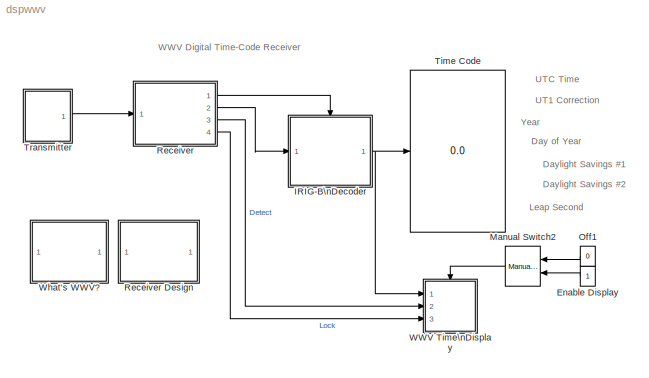
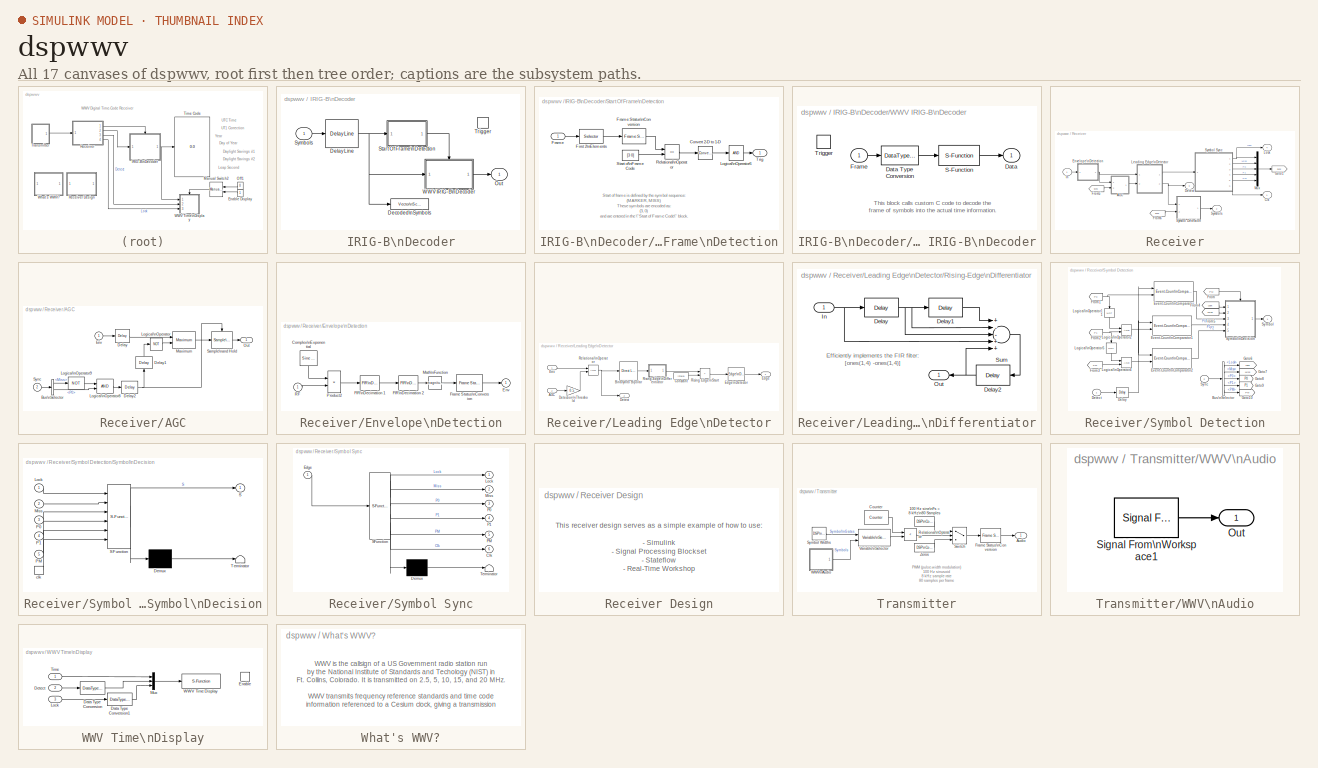
[diagram: thumbnail index - all 17 canvases of the model, root first then tree order]
MODEL dspwwv
KIND model
BLOCK [Constant] Enable Display
  OutDataTypeMode = boolean
BLOCK [SubSystem] IRIG-B\nDecoder
  MinAlgLoopOccurrences = off
  Ports = [1, 1, 0, 1]
  PropExecContextAcrossSSBoundary = on
  RTWSystemCode = Auto
  TreatAsAtomicUnit = on
BLOCK [Reference] IRIG-B\nDecoder/Decoded\nSymbols  REF=dspsnks4/Vector\nScope
  AxisGrid = on
  AxisLegend = off
  AxisProperties = off
  AxisZoom = off
  DisplayProperties = off
  Domain = User-defined
  FigPos = [288 87 633 176]
  FrameNumber = on
  HorizSpan = 1
  InheritXIncr = off
  LineColors = [0 0 1]|[0 0 1]
  LineMarkers = stem|stem
  LineProperties = off
  LineStyles = None|:
  Memory = off
  OpenScopeAtSimStart = on
  OpenScopeImmediately = off
  Ports = [1]
  ScopeProperties = on
  ShowPortLabels = off
  SourceBlock = dspsnks4/Vector\nScope
  SourceType = Vector Scope
  XIncr = 1
  XLabel = Samples
  XRange = [0...Fs/2]
  XUnits = Hertz
  YLabel = Symbols
  YMax = 3
  YMin = 0
  YUnits = dB
BLOCK [Reference] IRIG-B\nDecoder/Delay Line  REF=dspbuff3/Delay Line
  Ports = [1, 1]
  SourceBlock = dspbuff3/Delay Line
  SourceType = Delay Line
  directfeed = off
  ic = 0
  siz = 60
BLOCK [Outport] IRIG-B\nDecoder/Out
  IconDisplay = Port number
BLOCK [SubSystem] IRIG-B\nDecoder/Start Of Frame\nDetection
  MinAlgLoopOccurrences = off
  Ports = [1, 1]
  PropExecContextAcrossSSBoundary = on
  RTWSystemCode = Auto
  TreatAsAtomicUnit = off
BLOCK [Reference] IRIG-B\nDecoder/Start Of Frame\nDetection/Convert 2-D to 1-D  REF=dspsigattribs/Convert 2-D to 1-D
  Ports = [1, 1]
  ShowPortLabels = off
  SourceBlock = dspsigattribs/Convert 2-D to 1-D
  SourceType = Convert 2-D to 1-D
BLOCK [Selector] IRIG-B\nDecoder/Start Of Frame\nDetection/First 2\nElements
  Elements = [1 2]
  InputPortWidth = 60
  Ports = [1, 1]
BLOCK [Inport] IRIG-B\nDecoder/Start Of Frame\nDetection/Frame
  IconDisplay = Port number
  LatchInput = off
BLOCK [Reference] IRIG-B\nDecoder/Start Of Frame\nDetection/Frame Status\nConversion  REF=dspsigattribs/Frame Status\nConversion
  Ports = [1, 1]
  ShowPortLabels = off
  SourceBlock = dspsigattribs/Frame Status\nConversion
  SourceType = Frame Status Conversion
  growRefPort = off
  outframe = Sample-based
BLOCK [Logic] IRIG-B\nDecoder/Start Of Frame\nDetection/Logical\nOperator6
  Inputs = 1
  Ports = [1, 1]
BLOCK [RelationalOperator] IRIG-B\nDecoder/Start Of Frame\nDetection/Relational\nOperator
  Operator = ==
BLOCK [Constant] IRIG-B\nDecoder/Start Of Frame\nDetection/Start of\nFrame Code
  OutDataTypeMode = int8
  Value = [3 0]
BLOCK [Outport] IRIG-B\nDecoder/Start Of Frame\nDetection/Trig
  IconDisplay = Port number
  InitialOutput = 0
BLOCK [Inport] IRIG-B\nDecoder/Symbols
  IconDisplay = Port number
  LatchInput = off
BLOCK [TriggerPort] IRIG-B\nDecoder/Trigger
  Ports = []
  StatesWhenEnabling = reset
BLOCK [SubSystem] IRIG-B\nDecoder/WWV IRIG-B\nDecoder
  MinAlgLoopOccurrences = off
  Ports = [1, 1, 0, 1]
  PropExecContextAcrossSSBoundary = on
  RTWSystemCode = Auto
  TreatAsAtomicUnit = on
BLOCK [Outport] IRIG-B\nDecoder/WWV IRIG-B\nDecoder/Data
  IconDisplay = Port number
  InitialOutput = 0
BLOCK [DataTypeConversion] IRIG-B\nDecoder/WWV IRIG-B\nDecoder/Data Type Conversion
BLOCK [Inport] IRIG-B\nDecoder/WWV IRIG-B\nDecoder/Frame
  IconDisplay = Port number
  LatchInput = off
BLOCK [S-Function] IRIG-B\nDecoder/WWV IRIG-B\nDecoder/S-Function
  FunctionName = sdspwwv2
  Parameters = 2000
  Ports = [1, 1]
BLOCK [TriggerPort] IRIG-B\nDecoder/WWV IRIG-B\nDecoder/Trigger
  Ports = []
  StatesWhenEnabling = reset
BLOCK [Reference] Manual Switch2  REF=simulink/Signal\nRouting/Manual Switch
  Ports = [2, 1]
  ShowPortLabels = on
  SourceBlock = simulink/Signal\nRouting/Manual Switch
  SourceType = Manual Switch
  action = 0
  sw = 1
BLOCK [Constant] Off1
  OutDataTypeMode = boolean
  Value = 0
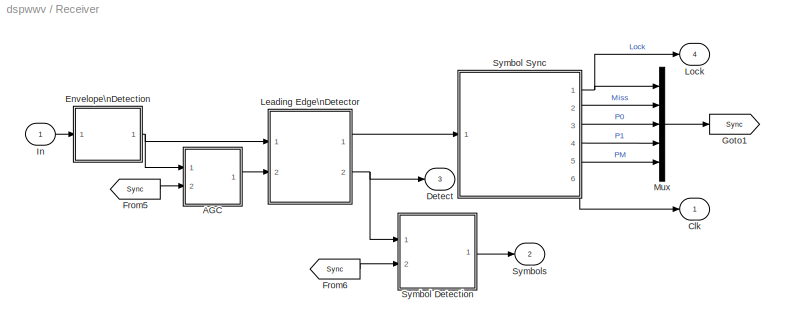
BLOCK [SubSystem] Receiver
  MinAlgLoopOccurrences = off
  Ports = [1, 4]
  PropExecContextAcrossSSBoundary = on
  RTWSystemCode = Auto
  TreatAsAtomicUnit = off
BLOCK [SubSystem] Receiver Design
  MaskDisplay = disp('Receiver\\nDesign')
  MaskIconFrame = on
  MaskIconOpaque = on
  MaskIconRotate = none
  MaskIconUnits = autoscale
  MaskType = WWV Info
  MinAlgLoopOccurrences = off
  Ports = []
  PropExecContextAcrossSSBoundary = on
  RTWSystemCode = Auto
  TreatAsAtomicUnit = off
BLOCK [SubSystem] Receiver/AGC
  MinAlgLoopOccurrences = off
  Ports = [2, 1]
  PropExecContextAcrossSSBoundary = on
  RTWSystemCode = Auto
  TreatAsAtomicUnit = off
BLOCK [BusSelector] Receiver/AGC/Bus\nSelector
  DialogController = Simulink.DDGSource_Bus
  OutputSignals = Miss,P0
  Ports = [1, 2]
BLOCK [Reference] Receiver/AGC/Delay  REF=dspsigops/Delay
  Ports = [1, 1]
  SourceBlock = dspsigops/Delay
  SourceType = Delay
  delay = 3
  dif_ic_for_ch = off
  dif_ic_for_dly = off
  dly_unit = Samples
  ic = 0
  ic_detail = off
  reset_popup = None
BLOCK [Reference] Receiver/AGC/Delay1  REF=dspsigops/Delay
  Ports = [1, 1]
  SourceBlock = dspsigops/Delay
  SourceType = Delay
  delay = 1
  dif_ic_for_ch = off
  dif_ic_for_dly = off
  dly_unit = Samples
  ic = 0
  ic_detail = off
  reset_popup = None
BLOCK [Reference] Receiver/AGC/Delay2  REF=dspsigops/Delay
  Ports = [1, 1]
  SourceBlock = dspsigops/Delay
  SourceType = Delay
  delay = 1
  dif_ic_for_ch = off
  dif_ic_for_dly = off
  dly_unit = Samples
  ic = 0
  ic_detail = off
  reset_popup = None
BLOCK [Inport] Receiver/AGC/Env
  IconDisplay = Port number
  LatchInput = off
BLOCK [Logic] Receiver/AGC/Logical\nOperator
  Inputs = 1
  Operator = NOT
  Ports = [1, 1]
BLOCK [Logic] Receiver/AGC/Logical\nOperator8
  Ports = [2, 1]
BLOCK [Logic] Receiver/AGC/Logical\nOperator9
  Inputs = 1
  Operator = NOT
  Ports = [1, 1]
BLOCK [Reference] Receiver/AGC/Maximum  REF=dspstat3/Maximum
  DialogController = dspDDGCreate
  DialogControllerArgs = DataTag0
  Ports = [2, 1]
  SourceBlock = dspstat3/Maximum
  SourceType = Maximum
  accumFracLength = 30
  accumMode = Same as product output
  accumWordLength = 32
  additionalParams = off
  allowOverrides = on
  fcn = Running
  overflowMode = off
  prodOutputFracLength = 30
  prodOutputMode = Same as input
  prodOutputWordLength = 32
  reset = Non-zero sample
  roundingMode = Floor
BLOCK [Outport] Receiver/AGC/Out
  IconDisplay = Port number
BLOCK [Reference] Receiver/AGC/Sample\nand Hold  REF=dspsigops/Sample\nand Hold
  Ports = [1, 1, 0, 1]
  ShowPortLabels = on
  SourceBlock = dspsigops/Sample\nand Hold
  SourceType = Sample and Hold
  initCond = single(0.075)
  trig = Falling edge
BLOCK [Inport] Receiver/AGC/Sync
  IconDisplay = Port number
  LatchInput = off
  Port = 2
BLOCK [Outport] Receiver/Clk
  IconDisplay = Port number
  InitialOutput = 0
BLOCK [Outport] Receiver/Detect
  IconDisplay = Port number
  InitialOutput = 0
  Port = 3
BLOCK [SubSystem] Receiver/Envelope\nDetection
  MinAlgLoopOccurrences = off
  Ports = [1, 1]
  PropExecContextAcrossSSBoundary = on
  RTWSystemCode = Auto
  TreatAsAtomicUnit = off
BLOCK [Reference] Receiver/Envelope\nDetection/Complex\nExponential  REF=dspsrcs4/Sine Wave
  Amplitude = 1
  CompMethod = Table lookup
  Frequency = 100
  OutComplex = Complex
  Phase = 0
  Ports = [0, 1]
  ResetState = Restart at time zero
  SampleMode = Discrete
  SampleTime = 1/8000
  SamplesPerFrame = 80
  SourceBlock = dspsrcs4/Sine Wave
  SourceType = Sine Wave
  TableSize = Memory
  additionalParams = on
  allowOverrides = on
  dataType = single
  fracBitsMode = Best precision
  numFracBits = 14
  udDataType = sfix(16)
  wordLen = 16
BLOCK [Outport] Receiver/Envelope\nDetection/Env
  IconDisplay = Port number
  InitialOutput = 0
BLOCK [Reference] Receiver/Envelope\nDetection/FIR\nDecimation 1  REF=dspmlti3/FIR\nDecimation
  D = 20
  DialogController = dspDDGCreate
  DialogControllerArgs = DataTag1
  Ports = [1, 1]
  SourceBlock = dspmlti3/FIR\nDecimation
  SourceType = FIR Decimation
  accumFracLength = 30
  accumMode = Inherit via internal rule
  accumWordLength = 32
  additionalParams = off
  allowOverrides = on
  firstCoeffFracLength = 15
  firstCoeffMode = Same word length as input
  firstCoeffWordLength = 16
  framing = Maintain input frame rate
  h = fir1(31, 1/40)
  outputBufInitCond = 0
  outputFracLength = 15
  outputMode = Same as accumulator
  outputWordLength = 16
  overflowMode = off
  prodOutputFracLength = 30
  prodOutputMode = Inherit via internal rule
  prodOutputWordLength = 32
  roundingMode = Floor
BLOCK [Reference] Receiver/Envelope\nDetection/FIR\nDecimation 2  REF=dspmlti3/FIR\nDecimation
  D = 4
  DialogController = dspDDGCreate
  DialogControllerArgs = DataTag2
  Ports = [1, 1]
  SourceBlock = dspmlti3/FIR\nDecimation
  SourceType = FIR Decimation
  accumFracLength = 30
  accumMode = Inherit via internal rule
  accumWordLength = 32
  additionalParams = off
  allowOverrides = on
  firstCoeffFracLength = 15
  firstCoeffMode = Same word length as input
  firstCoeffWordLength = 16
  framing = Maintain input frame rate
  h = fir1(15, 1/8)
  outputBufInitCond = 0
  outputFracLength = 15
  outputMode = Same as accumulator
  outputWordLength = 16
  overflowMode = off
  prodOutputFracLength = 30
  prodOutputMode = Inherit via internal rule
  prodOutputWordLength = 32
  roundingMode = Floor
BLOCK [Reference] Receiver/Envelope\nDetection/Frame Status\nConversion  REF=dspsigattribs/Frame Status\nConversion
  Ports = [1, 1]
  ShowPortLabels = off
  SourceBlock = dspsigattribs/Frame Status\nConversion
  SourceType = Frame Status Conversion
  growRefPort = off
  outframe = Sample-based
BLOCK [Math] Receiver/Envelope\nDetection/Math\nFunction
  Operator = magnitude^2
  Ports = [1, 1]
BLOCK [Product] Receiver/Envelope\nDetection/Product2
  Ports = [2, 1]
  RndMeth = Floor
BLOCK [Inport] Receiver/Envelope\nDetection/RF
  IconDisplay = Port number
  LatchInput = off
BLOCK [From] Receiver/From5
  DialogController = Simulink.DDGSource
  GotoTag = Sync
BLOCK [From] Receiver/From6
  DialogController = Simulink.DDGSource
  GotoTag = Sync
BLOCK [Goto] Receiver/Goto1
  DialogController = Simulink.DDGSource
  GotoTag = Sync
  TagVisibility = local
BLOCK [Inport] Receiver/In
  IconDisplay = Port number
  LatchInput = off
BLOCK [SubSystem] Receiver/Leading Edge\nDetector
  MinAlgLoopOccurrences = off
  Ports = [2, 2]
  PropExecContextAcrossSSBoundary = on
  RTWSystemCode = Auto
  TreatAsAtomicUnit = off
BLOCK [Inport] Receiver/Leading Edge\nDetector/AGC
  IconDisplay = Port number
  LatchInput = off
  Port = 2
BLOCK [Reference] Receiver/Leading Edge\nDetector/Binary\nto Bipolar  REF=simulink/Lookup\nTables/Direct Lookup\nTable (n-D)
  Ports = [1, 1]
  SourceBlock = simulink/Lookup\nTables/Direct Lookup\nTable (n-D)
  SourceType = LookupNDDirect
  clipFlag = None
  explicitNumDims = 1
  maskTabDims = 1
  mxTable = int8([-1, 1])
  outDims = Element
  tabIsInput = off
BLOCK [Constant] Receiver/Leading Edge\nDetector/Constant
  Value = int8(5)
BLOCK [Outport] Receiver/Leading Edge\nDetector/Detect
  IconDisplay = Port number
  InitialOutput = 0
  Port = 2
BLOCK [Gain] Receiver/Leading Edge\nDetector/Detection\nThreshold
  Gain = 0.5
BLOCK [Outport] Receiver/Leading Edge\nDetector/Edge
  IconDisplay = Port number
  InitialOutput = 0
BLOCK [Reference] Receiver/Leading Edge\nDetector/Edge\nDetector  REF=dspswit3/Edge\nDetector
  Ports = [1, 1]
  ShowPortLabels = on
  SourceBlock = dspswit3/Edge\nDetector
  SourceType = Edge Detector
BLOCK [Inport] Receiver/Leading Edge\nDetector/Env
  IconDisplay = Port number
  LatchInput = off
BLOCK [RelationalOperator] Receiver/Leading Edge\nDetector/Relational\nOperator
BLOCK [RelationalOperator] Receiver/Leading Edge\nDetector/Rising Edge\nStart
  InputSameDT = off
  LogicOutDataTypeMode = Boolean
  Operator = >
  ZeroCross = off
BLOCK [SubSystem] Receiver/Leading Edge\nDetector/Rising-Edge\nDifferentiator
  MinAlgLoopOccurrences = off
  Ports = [1, 1]
  PropExecContextAcrossSSBoundary = on
  RTWSystemCode = Auto
  TreatAsAtomicUnit = off
BLOCK [Reference] Receiver/Leading Edge\nDetector/Rising-Edge\nDifferentiator/Delay  REF=dspsigops/Delay
  Ports = [1, 1]
  SourceBlock = dspsigops/Delay
  SourceType = Delay
  delay = 4
  dif_ic_for_ch = off
  dif_ic_for_dly = off
  dly_unit = Samples
  ic = 0
  ic_detail = off
  reset_popup = None
BLOCK [Reference] Receiver/Leading Edge\nDetector/Rising-Edge\nDifferentiator/Delay1  REF=dspsigops/Delay
  Ports = [1, 1]
  SourceBlock = dspsigops/Delay
  SourceType = Delay
  delay = 4
  dif_ic_for_ch = off
  dif_ic_for_dly = off
  dly_unit = Samples
  ic = 0
  ic_detail = off
  reset_popup = None
BLOCK [Reference] Receiver/Leading Edge\nDetector/Rising-Edge\nDifferentiator/Delay2  REF=dspsigops/Delay
  Ports = [1, 1]
  SourceBlock = dspsigops/Delay
  SourceType = Delay
  delay = 1
  dif_ic_for_ch = off
  dif_ic_for_dly = off
  dly_unit = Samples
  ic = 0
  ic_detail = off
  reset_popup = None
BLOCK [Inport] Receiver/Leading Edge\nDetector/Rising-Edge\nDifferentiator/In
  IconDisplay = Port number
  LatchInput = off
BLOCK [Outport] Receiver/Leading Edge\nDetector/Rising-Edge\nDifferentiator/Out
  IconDisplay = Port number
BLOCK [Sum] Receiver/Leading Edge\nDetector/Rising-Edge\nDifferentiator/Sum
  InputSameDT = off
  Inputs = +--++
  OutDataTypeMode = Inherit via internal rule
  Ports = [5, 1]
BLOCK [Outport] Receiver/Lock
  IconDisplay = Port number
  InitialOutput = 0
  Port = 4
BLOCK [Mux] Receiver/Mux
  DisplayOption = bar
  Inputs = 5
  Ports = [5, 1]
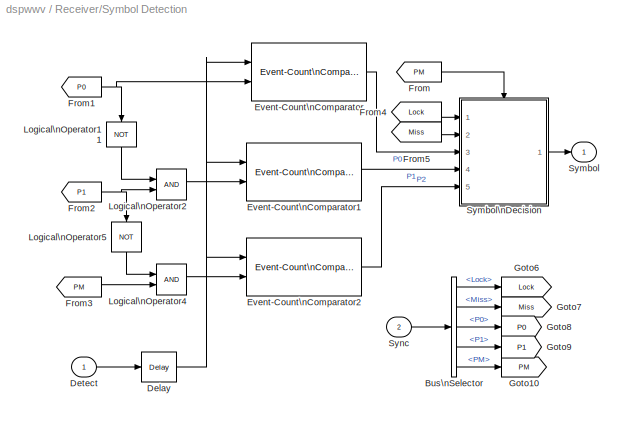
BLOCK [SubSystem] Receiver/Symbol Detection
  MinAlgLoopOccurrences = off
  Ports = [2, 1]
  PropExecContextAcrossSSBoundary = on
  RTWSystemCode = Auto
  TreatAsAtomicUnit = off
BLOCK [BusSelector] Receiver/Symbol Detection/Bus\nSelector
  DialogController = Simulink.DDGSource_Bus
  OutputSignals = Lock,Miss,P0,P1,PM
  Ports = [1, 5]
BLOCK [Reference] Receiver/Symbol Detection/Delay  REF=dspsigops/Delay
  Ports = [1, 1]
  SourceBlock = dspsigops/Delay
  SourceType = Delay
  delay = 2
  dif_ic_for_ch = off
  dif_ic_for_dly = off
  dly_unit = Samples
  ic = 0
  ic_detail = off
  reset_popup = None
BLOCK [Inport] Receiver/Symbol Detection/Detect
  IconDisplay = Port number
  LatchInput = off
BLOCK [Reference] Receiver/Symbol Detection/Event-Count\nComparator  REF=dspswit3/Event-Count\nComparator
  Ports = [2, 1]
  ShowPortLabels = on
  SourceBlock = dspswit3/Event-Count\nComparator
  SourceType = Event-Count Comparator
  Threshold = floor(0.17*50/2)
BLOCK [Reference] Receiver/Symbol Detection/Event-Count\nComparator1  REF=dspswit3/Event-Count\nComparator
  Ports = [2, 1]
  ShowPortLabels = on
  SourceBlock = dspswit3/Event-Count\nComparator
  SourceType = Event-Count Comparator
  Threshold = floor((0.47-0.17)*50/2)
BLOCK [Reference] Receiver/Symbol Detection/Event-Count\nComparator2  REF=dspswit3/Event-Count\nComparator
  Ports = [2, 1]
  ShowPortLabels = on
  SourceBlock = dspswit3/Event-Count\nComparator
  SourceType = Event-Count Comparator
  Threshold = floor((0.77-0.47)*50/2)
BLOCK [From] Receiver/Symbol Detection/From
  DialogController = Simulink.DDGSource
  GotoTag = PM
BLOCK [From] Receiver/Symbol Detection/From1
  DialogController = Simulink.DDGSource
  GotoTag = P0
BLOCK [From] Receiver/Symbol Detection/From2
  DialogController = Simulink.DDGSource
  GotoTag = P1
BLOCK [From] Receiver/Symbol Detection/From3
  DialogController = Simulink.DDGSource
  GotoTag = PM
BLOCK [From] Receiver/Symbol Detection/From4
  DialogController = Simulink.DDGSource
  GotoTag = Lock
BLOCK [From] Receiver/Symbol Detection/From5
  DialogController = Simulink.DDGSource
  GotoTag = Miss
BLOCK [Goto] Receiver/Symbol Detection/Goto10
  DialogController = Simulink.DDGSource
  GotoTag = PM
  TagVisibility = local
BLOCK [Goto] Receiver/Symbol Detection/Goto6
  DialogController = Simulink.DDGSource
  GotoTag = Lock
  TagVisibility = local
BLOCK [Goto] Receiver/Symbol Detection/Goto7
  DialogController = Simulink.DDGSource
  GotoTag = Miss
  TagVisibility = local
BLOCK [Goto] Receiver/Symbol Detection/Goto8
  DialogController = Simulink.DDGSource
  GotoTag = P0
  TagVisibility = local
BLOCK [Goto] Receiver/Symbol Detection/Goto9
  DialogController = Simulink.DDGSource
  GotoTag = P1
  TagVisibility = local
BLOCK [Logic] Receiver/Symbol Detection/Logical\nOperator11
  Inputs = 1
  Operator = NOT
  Ports = [1, 1]
BLOCK [Logic] Receiver/Symbol Detection/Logical\nOperator2
  Ports = [2, 1]
BLOCK [Logic] Receiver/Symbol Detection/Logical\nOperator4
  Ports = [2, 1]
BLOCK [Logic] Receiver/Symbol Detection/Logical\nOperator5
  Inputs = 1
  Operator = NOT
  Ports = [1, 1]
BLOCK [Outport] Receiver/Symbol Detection/Symbol
  IconDisplay = Port number
  InitialOutput = 0
BLOCK [SubSystem] Receiver/Symbol Detection/Symbol\nDecision
  MaskDescription = Stateflow diagram
  MaskDisplay = plot(sf('Private','sfblk','xIcon'),sf('Private','sfblk','yIcon'));text(0.5,0,sf('Private', 'sfblk', 'tIcon'),'HorizontalAl','Center','VerticalAl','Bottom');
  MaskIconFrame = off
  MaskIconOpaque = off
  MaskIconRotate = none
  MaskIconUnits = autoscale
  MaskSelfModifiable = on
  MaskType = Stateflow
  MinAlgLoopOccurrences = off
  Ports = [5, 1, 0, 1]
  PropExecContextAcrossSSBoundary = on
  RTWSystemCode = Auto
  TreatAsAtomicUnit = off
BLOCK [Demux] Receiver/Symbol Detection/Symbol\nDecision/ Demux 
  Outputs = 1
  Ports = [1, 1]
BLOCK [S-Function] Receiver/Symbol Detection/Symbol\nDecision/ SFunction 
  FunctionName = sf_sfun
  PortCounts = [6 2]
  Ports = [6, 2]
  Tag = Stateflow S-Function dspwwv 1
BLOCK [Terminator] Receiver/Symbol Detection/Symbol\nDecision/ Terminator 
BLOCK [Inport] Receiver/Symbol Detection/Symbol\nDecision/Lock
  IconDisplay = Port number
  LatchInput = off
BLOCK [Inport] Receiver/Symbol Detection/Symbol\nDecision/Miss
  IconDisplay = Port number
  LatchInput = off
  Port = 2
BLOCK [Inport] Receiver/Symbol Detection/Symbol\nDecision/P0
  IconDisplay = Port number
  LatchInput = off
  Port = 3
BLOCK [Inport] Receiver/Symbol Detection/Symbol\nDecision/P1
  IconDisplay = Port number
  LatchInput = off
  Port = 4
BLOCK [Inport] Receiver/Symbol Detection/Symbol\nDecision/PM
  IconDisplay = Port number
  LatchInput = off
  Port = 5
BLOCK [Outport] Receiver/Symbol Detection/Symbol\nDecision/S
  IconDisplay = Port number
BLOCK [TriggerPort] Receiver/Symbol Detection/Symbol\nDecision/clk
  Ports = [0, 1]
  ShowOutputPort = on
  StatesWhenEnabling = reset
  TriggerType = falling
BLOCK [Inport] Receiver/Symbol Detection/Sync
  IconDisplay = Port number
  LatchInput = off
  Port = 2
BLOCK [SubSystem] Receiver/Symbol Sync
  MaskDescription = Stateflow diagram
  MaskDisplay = plot(sf('Private','sfblk','xIcon'),sf('Private','sfblk','yIcon'));text(0.5,0,sf('Private', 'sfblk', 'tIcon'),'HorizontalAl','Center','VerticalAl','Bottom');
  MaskIconFrame = off
  MaskIconOpaque = off
  MaskIconRotate = none
  MaskIconUnits = autoscale
  MaskSelfModifiable = on
  MaskType = Stateflow
  MinAlgLoopOccurrences = off
  Ports = [1, 6]
  PropExecContextAcrossSSBoundary = on
  RTWSystemCode = Auto
  TreatAsAtomicUnit = off
BLOCK [Demux] Receiver/Symbol Sync/ Demux 
  Outputs = 1
  Ports = [1, 1]
BLOCK [S-Function] Receiver/Symbol Sync/ SFunction 
  FunctionName = sf_sfun
  PortCounts = [1 7]
  Ports = [1, 7]
  Tag = Stateflow S-Function dspwwv 3
BLOCK [Terminator] Receiver/Symbol Sync/ Terminator 
BLOCK [Outport] Receiver/Symbol Sync/Clk
  IconDisplay = Port number
  Port = 6
BLOCK [Inport] Receiver/Symbol Sync/Edge
  IconDisplay = Port number
  LatchInput = off
BLOCK [Outport] Receiver/Symbol Sync/Lock
  IconDisplay = Port number
BLOCK [Outport] Receiver/Symbol Sync/Miss
  IconDisplay = Port number
  Port = 2
BLOCK [Outport] Receiver/Symbol Sync/P0
  IconDisplay = Port number
  Port = 3
BLOCK [Outport] Receiver/Symbol Sync/P1
  IconDisplay = Port number
  Port = 4
BLOCK [Outport] Receiver/Symbol Sync/PM
  IconDisplay = Port number
  Port = 5
BLOCK [Outport] Receiver/Symbols
  IconDisplay = Port number
  InitialOutput = 0
  Port = 2
BLOCK [Display] Time Code
  Decimation = 1
  Ports = [1]
BLOCK [SubSystem] Transmitter
  MinAlgLoopOccurrences = off
  Ports = [0, 1]
  PropExecContextAcrossSSBoundary = on
  RTWSystemCode = Auto
  TreatAsAtomicUnit = off
BLOCK [Reference] Transmitter/100 Hz sine\nFs = 8 kHz\n80 Samples  REF=dspsrcs4/DSP\nConstant
  FramebasedOutput = off
  InterpretAs1D = on
  Ports = [0, 1]
  SampleMode = Continuous
  ShowPortLabels = on
  SourceBlock = dspsrcs4/DSP\nConstant
  SourceType = DSP Constant
  Ts = 1
  Value = single(sin(2*pi*100*(0:79)/8000))
  additionalParams = off
  allowOverrides = on
  continuousOutput = Sample-based (interpret vectors as 1-D)
  dataType = Inherit from 'Constant value'
  discreteOutput = Sample-based (interpret vectors as 1-D)
  fracBitsMode = Best precision
  framePeriod = 1
  isSigned = on
  numFracBits = 15
  sampTime = 1
  udDataType = sfix(16)
  wordLen = 16
BLOCK [Outport] Transmitter/Audio
  IconDisplay = Port number
BLOCK [Reference] Transmitter/Counter  REF=dspswit3/Counter
  CntDtype = single
  CountEvent = Free running
  CounterSize = User defined
  Direction = Up
  HitDtype = Logical
  HitValue = 32
  InitialCount = 0
  MaxCount = 99
  Output = Count
  Ports = [0, 1]
  ResetInput = off
  SamplesPerFrame = 1
  SourceBlock = dspswit3/Counter
  SourceType = Counter
  Ts = 1/100
BLOCK [Reference] Transmitter/Frame Status\nConversion  REF=dspsigattribs/Frame Status\nConversion
  Ports = [1, 1]
  ShowPortLabels = off
  SourceBlock = dspsigattribs/Frame Status\nConversion
  SourceType = Frame Status Conversion
  growRefPort = off
  outframe = Frame-based
BLOCK [RelationalOperator] Transmitter/Relational\nOperator
  Operator = <
BLOCK [Switch] Transmitter/Switch
  Threshold = 1
BLOCK [Reference] Transmitter/Symbol Widths  REF=dspsrcs4/DSP\nConstant
  FramebasedOutput = -inf
  InterpretAs1D = -inf
  Ports = [0, 1]
  SampleMode = Discrete
  ShowPortLabels = on
  SourceBlock = dspsrcs4/DSP\nConstant
  SourceType = DSP Constant
  Ts = -inf
  Value = single([0 17 47 77])
  additionalParams = off
  allowOverrides = on
  continuousOutput = Sample-based
  dataType = Inherit from 'Constant value'
  discreteOutput = Sample-based (interpret vectors as 1-D)
  fracBitsMode = Best precision
  framePeriod = 2
  isSigned = on
  numFracBits = 15
  sampTime = 1
  udDataType = sfix(16)
  wordLen = 16
BLOCK [Reference] Transmitter/Variable\nSelector  REF=dspindex/Variable\nSelector
  Elements = [1 3]
  IdxMode = Variable
  Ports = [2, 1]
  ShowPortLabels = on
  SourceBlock = dspindex/Variable\nSelector
  SourceType = Variable Selector
  ZerOneIdxMode = Zero-based
  errmode = Clip and Warn
  rowsOrCols = Rows
BLOCK [SubSystem] Transmitter/WWV\nAudio
  MaskCallbackString = ||||||||
  MaskDescription = Generate 8 kHz sampled test data in WWV IRIG format.
  MaskDisplay = plot(x,y)
  MaskEnableString = on,on,on,on,on,on,on,on,on
  MaskHelp = Generate 8 kHz sampled test data in WWV IRIG format.
  MaskIconFrame = on
  MaskIconOpaque = on
  MaskIconRotate = none
  MaskIconUnits = normalized
  MaskInitialization = s.utc=utc;s.ut1=ut1;s.day=day;s.yr=yr;\ns.dst=dst;s.dst2=dst2;s.leap=leap; s.mode=outp;\n[b,Ts]=dspwwvgen(s);\n\nif strcmp(outp,'Audio'),\n\nx = [.1 .2 .2 .1 .1 NaN .2 .35 .35 .2 .2 NaN .35 .4 .4 .35 .35];\ny = [.4 .4 .6 .6 .4 NaN .4 .1  .9  .6 .4 NaN .1  .1 .9 .9  .1 ];\na=.5;  s=5*pi/180;  t = -s:pi/180:s; x = [x NaN a*cos(t)]; y = [y NaN a*sin(t)+.5];\na=.65; s=10*pi/180; t = -s:pi/180:s; x = [...<+219ch>
  MaskPromptString = Output:|Time (hh.mm):|UT1 Correction ([-0.7, +0.7]):|Day of year:|Year:|Daylight Savings|Daylight Savings #2|Leap second|Samples per frame:
  MaskStyleString = popup(Symbols|Audio),edit,edit,edit,edit,checkbox,checkbox,checkbox,edit
  MaskTabNameString = ,,,,,,,,
  MaskToolTipString = on,on,on,on,on,on,on,on,on
  MaskTunableValueString = on,on,on,on,on,on,on,on,on
  MaskType = WWV Audio Synthesizer
  MaskValueString = Symbols|12.34|+0.2|336|2002|off|off|on|1
  MaskVarAliasString = ,,,,,,,,
  MaskVariables = outp=&1;utc=@2;ut1=@3;day=@4;yr=@5;dst=@6;dst2=@7;leap=@8;bufsize=@9;
  MaskVisibilityString = on,on,on,on,on,on,on,on,on
  MinAlgLoopOccurrences = off
  Ports = [0, 1]
  PropExecContextAcrossSSBoundary = on
  RTWSystemCode = Auto
  TreatAsAtomicUnit = off
BLOCK [Outport] Transmitter/WWV\nAudio/Out
  IconDisplay = Port number
  InitialOutput = 0
BLOCK [Reference] Transmitter/WWV\nAudio/Signal From\nWorkspace1  REF=dspsrcs4/Signal From\nWorkspace
  OutputAfterFinalValue = Setting to zero
  Ports = [0, 1]
  ShowPortLabels = on
  SourceBlock = dspsrcs4/Signal From\nWorkspace
  SourceType = Signal From Workspace
  Ts = Ts
  X = int8(b)
  nsamps = bufsize
BLOCK [Reference] Transmitter/Zeros  REF=dspsrcs4/DSP\nConstant
  FramebasedOutput = off
  InterpretAs1D = on
  Ports = [0, 1]
  SampleMode = Continuous
  ShowPortLabels = on
  SourceBlock = dspsrcs4/DSP\nConstant
  SourceType = DSP Constant
  Ts = 1
  Value = single(zeros(80,1))
  additionalParams = off
  allowOverrides = on
  continuousOutput = Sample-based (interpret vectors as 1-D)
  dataType = Inherit from 'Constant value'
  discreteOutput = Sample-based (interpret vectors as 1-D)
  fracBitsMode = Best precision
  framePeriod = 1
  isSigned = on
  numFracBits = 15
  sampTime = 1
  udDataType = sfix(16)
  wordLen = 16
BLOCK [SubSystem] WWV Time\nDisplay
  CopyFcn = sdspwwvdisp([],[],[],'BlockCopy');
  DeleteFcn = sdspwwvdisp([],[],[],'BlockDelete');
  MaskDescription = Display WWV time-code data in a Handle Graphics window.
  MaskDisplay = disp('WWV\\nDisplay')\n
  MaskEnableString = on
  MaskHelp = Display WWV time-code data in a Handle Graphics window.
  MaskIconFrame = on
  MaskIconOpaque = on
  MaskIconRotate = none
  MaskIconUnits = autoscale
  MaskInitialization = s.FigPos = FigPos;\n
  MaskPromptString = Figure position:
  MaskSelfModifiable = on
  MaskStyleString = edit
  MaskToolTipString = on
  MaskTunableValueString = on
  MaskType = WWV Time Display
  MaskValueString = [50 50 230 230]
  MaskVariables = FigPos=@1;
  MaskVisibilityString = on
  MinAlgLoopOccurrences = off
  NameChangeFcn = sdspwwvdisp([],[],[],'NameChange');
  Ports = [3, 0, 1]
  PropExecContextAcrossSSBoundary = on
  RTWSystemCode = Auto
  TreatAsAtomicUnit = on
BLOCK [DataTypeConversion] WWV Time\nDisplay/Data Type Conversion
BLOCK [DataTypeConversion] WWV Time\nDisplay/Data Type Conversion1
BLOCK [Inport] WWV Time\nDisplay/Detect
  IconDisplay = Port number
  LatchInput = off
  Port = 2
BLOCK [EnablePort] WWV Time\nDisplay/Enable
  Ports = []
BLOCK [Inport] WWV Time\nDisplay/Lock
  IconDisplay = Port number
  LatchInput = off
  Port = 3
BLOCK [Mux] WWV Time\nDisplay/Mux
  DisplayOption = bar
  Inputs = 3
  Ports = [3, 1]
BLOCK [Inport] WWV Time\nDisplay/Time
  IconDisplay = Port number
  LatchInput = off
BLOCK [S-Function] WWV Time\nDisplay/WWV Time Display
  FunctionName = sdspwwvdisp
  Parameters = s
  Ports = [1]
BLOCK [SubSystem] What's WWV?
  MaskDisplay = disp('What''s\\nWWV?')
  MaskIconFrame = on
  MaskIconOpaque = on
  MaskIconRotate = none
  MaskIconUnits = autoscale
  MaskType = WWV Info
  MinAlgLoopOccurrences = off
  Ports = []
  PropExecContextAcrossSSBoundary = on
  RTWSystemCode = Auto
  TreatAsAtomicUnit = off
ANNOTATION (root): UT1 Correction
ANNOTATION (root): UTC Time
ANNOTATION (root): Day of Year
ANNOTATION (root): Daylight Savings #1
ANNOTATION (root): Daylight Savings #2
ANNOTATION (root): Leap Second
ANNOTATION (root): Year
ANNOTATION (root): \nWWV Digital Time-Code Receiver\n
ANNOTATION IRIG-B\nDecoder/Start Of Frame\nDetection: Start of frame is defined by the symbol sequence: \n(MARKER, MISS)\nThese symbols are encoded as:\n(3, 0)\nand are entered in the \"Start of Frame Code\" block.
ANNOTATION IRIG-B\nDecoder/WWV IRIG-B\nDecoder: This block calls custom C code to decode the\nframe of symbols into the actual time information.
ANNOTATION Receiver Design: This receiver design serves as a simple example of how to use:\n\n- Simulink\n- Signal Processing Blockset\n- Stateflow\n- Real-Time Workshop\n\ntogether to achieve an incoherent digital receiver. The\nexample incorporates Stateflow for achieving symbol\nsynchronization. Therefore, you must have a compatible\nC compiler and be able to compile MEX from MATLAB.\n\nThe transmitted symbols, MARKER, ZE...<+170ch>
ANNOTATION Receiver/Leading Edge\nDetector/Rising-Edge\nDifferentiator: Efficiently implements the FIR filter:\n[ones(1,4) -ones(1,4)]
ANNOTATION Transmitter: PWM (pulse-width modulation)\n100 Hz sinusoid\n8 kHz sample rate\n80 samples per frame
ANNOTATION What's WWV?: WWV is the callsign of a US Government radio station run\nby the National Institute of Standards and Techology (NIST) in\nFt. Collins, Colorado. It is transmitted on 2.5, 5, 10, 15, and 20 MHz.\n\nWWV transmits frequency reference standards and time code\ninformation referenced to a Cesium clock, giving a transmission\naccuracy of 1 part in 100 billion for frequency or 10 uS for timing.\n\nThe tim...<+592ch>
LINE Enable Display:1 -> Manual Switch2:2
NET IRIG-B\nDecoder/Delay Line:1 -> IRIG-B\nDecoder/Decoded\nSymbols:1, IRIG-B\nDecoder/Start Of Frame\nDetection:1, IRIG-B\nDecoder/WWV IRIG-B\nDecoder:1
LINE IRIG-B\nDecoder/Start Of Frame\nDetection/Convert 2-D to 1-D:1 -> IRIG-B\nDecoder/Start Of Frame\nDetection/Logical\nOperator6:1
LINE IRIG-B\nDecoder/Start Of Frame\nDetection/First 2\nElements:1 -> IRIG-B\nDecoder/Start Of Frame\nDetection/Frame Status\nConversion:1
LINE IRIG-B\nDecoder/Start Of Frame\nDetection/Frame Status\nConversion:1 -> IRIG-B\nDecoder/Start Of Frame\nDetection/Relational\nOperator:1
LINE IRIG-B\nDecoder/Start Of Frame\nDetection/Frame:1 -> IRIG-B\nDecoder/Start Of Frame\nDetection/First 2\nElements:1
LINE IRIG-B\nDecoder/Start Of Frame\nDetection/Logical\nOperator6:1 -> IRIG-B\nDecoder/Start Of Frame\nDetection/Trig:1
LINE IRIG-B\nDecoder/Start Of Frame\nDetection/Relational\nOperator:1 -> IRIG-B\nDecoder/Start Of Frame\nDetection/Convert 2-D to 1-D:1
LINE IRIG-B\nDecoder/Start Of Frame\nDetection/Start of\nFrame Code:1 -> IRIG-B\nDecoder/Start Of Frame\nDetection/Relational\nOperator:2
LINE IRIG-B\nDecoder/Start Of Frame\nDetection:1 -> IRIG-B\nDecoder/WWV IRIG-B\nDecoder:trigger
LINE IRIG-B\nDecoder/Symbols:1 -> IRIG-B\nDecoder/Delay Line:1
LINE IRIG-B\nDecoder/WWV IRIG-B\nDecoder/Data Type Conversion:1 -> IRIG-B\nDecoder/WWV IRIG-B\nDecoder/S-Function:1
LINE IRIG-B\nDecoder/WWV IRIG-B\nDecoder/Frame:1 -> IRIG-B\nDecoder/WWV IRIG-B\nDecoder/Data Type Conversion:1
LINE IRIG-B\nDecoder/WWV IRIG-B\nDecoder/S-Function:1 -> IRIG-B\nDecoder/WWV IRIG-B\nDecoder/Data:1
LINE IRIG-B\nDecoder/WWV IRIG-B\nDecoder:1 -> IRIG-B\nDecoder/Out:1
NET IRIG-B\nDecoder:1 -> Time Code:1, WWV Time\nDisplay:1
LINE Manual Switch2:1 -> WWV Time\nDisplay:enable
LINE Off1:1 -> Manual Switch2:1
LINE Receiver/AGC/Bus\nSelector:1 -> Receiver/AGC/Logical\nOperator9:1
LINE Receiver/AGC/Bus\nSelector:2 -> Receiver/AGC/Logical\nOperator8:2
LINE Receiver/AGC/Delay1:1 -> Receiver/AGC/Logical\nOperator:1
NET Receiver/AGC/Delay2:1 -> Receiver/AGC/Delay1:1, Receiver/AGC/Sample\nand Hold:trigger
LINE Receiver/AGC/Delay:1 -> Receiver/AGC/Maximum:1
LINE Receiver/AGC/Env:1 -> Receiver/AGC/Delay:1
LINE Receiver/AGC/Logical\nOperator8:1 -> Receiver/AGC/Delay2:1
LINE Receiver/AGC/Logical\nOperator9:1 -> Receiver/AGC/Logical\nOperator8:1
LINE Receiver/AGC/Logical\nOperator:1 -> Receiver/AGC/Maximum:2
LINE Receiver/AGC/Maximum:1 -> Receiver/AGC/Sample\nand Hold:1
LINE Receiver/AGC/Sample\nand Hold:1 -> Receiver/AGC/Out:1
LINE Receiver/AGC/Sync:1 -> Receiver/AGC/Bus\nSelector:1
LINE Receiver/AGC:1 -> Receiver/Leading Edge\nDetector:2
LINE Receiver/Envelope\nDetection/Complex\nExponential:1 -> Receiver/Envelope\nDetection/Product2:1
LINE Receiver/Envelope\nDetection/FIR\nDecimation 1:1 -> Receiver/Envelope\nDetection/FIR\nDecimation 2:1
LINE Receiver/Envelope\nDetection/FIR\nDecimation 2:1 -> Receiver/Envelope\nDetection/Math\nFunction:1
LINE Receiver/Envelope\nDetection/Frame Status\nConversion:1 -> Receiver/Envelope\nDetection/Env:1
LINE Receiver/Envelope\nDetection/Math\nFunction:1 -> Receiver/Envelope\nDetection/Frame Status\nConversion:1
LINE Receiver/Envelope\nDetection/Product2:1 -> Receiver/Envelope\nDetection/FIR\nDecimation 1:1
LINE Receiver/Envelope\nDetection/RF:1 -> Receiver/Envelope\nDetection/Product2:2
NET Receiver/Envelope\nDetection:1 -> Receiver/AGC:1, Receiver/Leading Edge\nDetector:1
LINE Receiver/From5:1 -> Receiver/AGC:2
LINE Receiver/From6:1 -> Receiver/Symbol Detection:2
LINE Receiver/In:1 -> Receiver/Envelope\nDetection:1
LINE Receiver/Leading Edge\nDetector/AGC:1 -> Receiver/Leading Edge\nDetector/Detection\nThreshold:1
LINE Receiver/Leading Edge\nDetector/Binary\nto Bipolar:1 -> Receiver/Leading Edge\nDetector/Rising-Edge\nDifferentiator:1
LINE Receiver/Leading Edge\nDetector/Constant:1 -> Receiver/Leading Edge\nDetector/Rising Edge\nStart:2
LINE Receiver/Leading Edge\nDetector/Detection\nThreshold:1 -> Receiver/Leading Edge\nDetector/Relational\nOperator:2
LINE Receiver/Leading Edge\nDetector/Edge\nDetector:1 -> Receiver/Leading Edge\nDetector/Edge:1
LINE Receiver/Leading Edge\nDetector/Env:1 -> Receiver/Leading Edge\nDetector/Relational\nOperator:1
NET Receiver/Leading Edge\nDetector/Relational\nOperator:1 -> Receiver/Leading Edge\nDetector/Binary\nto Bipolar:1, Receiver/Leading Edge\nDetector/Detect:1
LINE Receiver/Leading Edge\nDetector/Rising Edge\nStart:1 -> Receiver/Leading Edge\nDetector/Edge\nDetector:1
LINE Receiver/Leading Edge\nDetector/Rising-Edge\nDifferentiator/Delay1:1 -> Receiver/Leading Edge\nDetector/Rising-Edge\nDifferentiator/Sum:1
NET Receiver/Leading Edge\nDetector/Rising-Edge\nDifferentiator/Delay2:1 -> Receiver/Leading Edge\nDetector/Rising-Edge\nDifferentiator/Out:1, Receiver/Leading Edge\nDetector/Rising-Edge\nDifferentiator/Sum:5
NET Receiver/Leading Edge\nDetector/Rising-Edge\nDifferentiator/Delay:1 -> Receiver/Leading Edge\nDetector/Rising-Edge\nDifferentiator/Delay1:1, Receiver/Leading Edge\nDetector/Rising-Edge\nDifferentiator/Sum:2, Receiver/Leading Edge\nDetector/Rising-Edge\nDifferentiator/Sum:3
NET Receiver/Leading Edge\nDetector/Rising-Edge\nDifferentiator/In:1 -> Receiver/Leading Edge\nDetector/Rising-Edge\nDifferentiator/Delay:1, Receiver/Leading Edge\nDetector/Rising-Edge\nDifferentiator/Sum:4
LINE Receiver/Leading Edge\nDetector/Rising-Edge\nDifferentiator/Sum:1 -> Receiver/Leading Edge\nDetector/Rising-Edge\nDifferentiator/Delay2:1
LINE Receiver/Leading Edge\nDetector/Rising-Edge\nDifferentiator:1 -> Receiver/Leading Edge\nDetector/Rising Edge\nStart:1
LINE Receiver/Leading Edge\nDetector:1 -> Receiver/Symbol Sync:1
NET Receiver/Leading Edge\nDetector:2 -> Receiver/Detect:1, Receiver/Symbol Detection:1
LINE Receiver/Mux:1 -> Receiver/Goto1:1
LINE Receiver/Symbol Detection/Bus\nSelector:1 -> Receiver/Symbol Detection/Goto6:1
LINE Receiver/Symbol Detection/Bus\nSelector:2 -> Receiver/Symbol Detection/Goto7:1
LINE Receiver/Symbol Detection/Bus\nSelector:3 -> Receiver/Symbol Detection/Goto8:1
LINE Receiver/Symbol Detection/Bus\nSelector:4 -> Receiver/Symbol Detection/Goto9:1
LINE Receiver/Symbol Detection/Bus\nSelector:5 -> Receiver/Symbol Detection/Goto10:1
NET Receiver/Symbol Detection/Delay:1 -> Receiver/Symbol Detection/Event-Count\nComparator1:1, Receiver/Symbol Detection/Event-Count\nComparator2:1, Receiver/Symbol Detection/Event-Count\nComparator:1
LINE Receiver/Symbol Detection/Detect:1 -> Receiver/Symbol Detection/Delay:1
LINE Receiver/Symbol Detection/Event-Count\nComparator1:1 -> Receiver/Symbol Detection/Symbol\nDecision:4
LINE Receiver/Symbol Detection/Event-Count\nComparator2:1 -> Receiver/Symbol Detection/Symbol\nDecision:5
LINE Receiver/Symbol Detection/Event-Count\nComparator:1 -> Receiver/Symbol Detection/Symbol\nDecision:3
NET Receiver/Symbol Detection/From1:1 -> Receiver/Symbol Detection/Event-Count\nComparator:2, Receiver/Symbol Detection/Logical\nOperator11:1
NET Receiver/Symbol Detection/From2:1 -> Receiver/Symbol Detection/Logical\nOperator2:2, Receiver/Symbol Detection/Logical\nOperator5:1
LINE Receiver/Symbol Detection/From3:1 -> Receiver/Symbol Detection/Logical\nOperator4:2
LINE Receiver/Symbol Detection/From4:1 -> Receiver/Symbol Detection/Symbol\nDecision:1
LINE Receiver/Symbol Detection/From5:1 -> Receiver/Symbol Detection/Symbol\nDecision:2
LINE Receiver/Symbol Detection/From:1 -> Receiver/Symbol Detection/Symbol\nDecision:trigger
LINE Receiver/Symbol Detection/Logical\nOperator11:1 -> Receiver/Symbol Detection/Logical\nOperator2:1
LINE Receiver/Symbol Detection/Logical\nOperator2:1 -> Receiver/Symbol Detection/Event-Count\nComparator1:2
LINE Receiver/Symbol Detection/Logical\nOperator4:1 -> Receiver/Symbol Detection/Event-Count\nComparator2:2
LINE Receiver/Symbol Detection/Logical\nOperator5:1 -> Receiver/Symbol Detection/Logical\nOperator4:1
LINE Receiver/Symbol Detection/Symbol\nDecision/ Demux :1 -> Receiver/Symbol Detection/Symbol\nDecision/ Terminator :1
LINE Receiver/Symbol Detection/Symbol\nDecision/ SFunction :1 -> Receiver/Symbol Detection/Symbol\nDecision/ Demux :1
LINE Receiver/Symbol Detection/Symbol\nDecision/ SFunction :2 -> Receiver/Symbol Detection/Symbol\nDecision/S:1
LINE Receiver/Symbol Detection/Symbol\nDecision/Lock:1 -> Receiver/Symbol Detection/Symbol\nDecision/ SFunction :1
LINE Receiver/Symbol Detection/Symbol\nDecision/Miss:1 -> Receiver/Symbol Detection/Symbol\nDecision/ SFunction :2
LINE Receiver/Symbol Detection/Symbol\nDecision/P0:1 -> Receiver/Symbol Detection/Symbol\nDecision/ SFunction :3
LINE Receiver/Symbol Detection/Symbol\nDecision/P1:1 -> Receiver/Symbol Detection/Symbol\nDecision/ SFunction :4
LINE Receiver/Symbol Detection/Symbol\nDecision/PM:1 -> Receiver/Symbol Detection/Symbol\nDecision/ SFunction :5
LINE Receiver/Symbol Detection/Symbol\nDecision/clk:1 -> Receiver/Symbol Detection/Symbol\nDecision/ SFunction :6
LINE Receiver/Symbol Detection/Symbol\nDecision:1 -> Receiver/Symbol Detection/Symbol:1
LINE Receiver/Symbol Detection/Sync:1 -> Receiver/Symbol Detection/Bus\nSelector:1
LINE Receiver/Symbol Detection:1 -> Receiver/Symbols:1
LINE Receiver/Symbol Sync/ Demux :1 -> Receiver/Symbol Sync/ Terminator :1
LINE Receiver/Symbol Sync/ SFunction :1 -> Receiver/Symbol Sync/ Demux :1
LINE Receiver/Symbol Sync/ SFunction :2 -> Receiver/Symbol Sync/Lock:1
LINE Receiver/Symbol Sync/ SFunction :3 -> Receiver/Symbol Sync/Miss:1
LINE Receiver/Symbol Sync/ SFunction :4 -> Receiver/Symbol Sync/P0:1
LINE Receiver/Symbol Sync/ SFunction :5 -> Receiver/Symbol Sync/P1:1
LINE Receiver/Symbol Sync/ SFunction :6 -> Receiver/Symbol Sync/PM:1
LINE Receiver/Symbol Sync/ SFunction :7 -> Receiver/Symbol Sync/Clk:1
LINE Receiver/Symbol Sync/Edge:1 -> Receiver/Symbol Sync/ SFunction :1
NET Receiver/Symbol Sync:1 -> Receiver/Lock:1, Receiver/Mux:1
LINE Receiver/Symbol Sync:2 -> Receiver/Mux:2
LINE Receiver/Symbol Sync:3 -> Receiver/Mux:3
LINE Receiver/Symbol Sync:4 -> Receiver/Mux:4
LINE Receiver/Symbol Sync:5 -> Receiver/Mux:5
LINE Receiver/Symbol Sync:6 -> Receiver/Clk:1
LINE Receiver:1 -> IRIG-B\nDecoder:trigger
LINE Receiver:2 -> IRIG-B\nDecoder:1
LINE Receiver:3 -> WWV Time\nDisplay:2
LINE Receiver:4 -> WWV Time\nDisplay:3
LINE Transmitter/100 Hz sine\nFs = 8 kHz\n80 Samples:1 -> Transmitter/Switch:1
LINE Transmitter/Counter:1 -> Transmitter/Relational\nOperator:1
LINE Transmitter/Frame Status\nConversion:1 -> Transmitter/Audio:1
LINE Transmitter/Relational\nOperator:1 -> Transmitter/Switch:2
LINE Transmitter/Switch:1 -> Transmitter/Frame Status\nConversion:1
LINE Transmitter/Symbol Widths:1 -> Transmitter/Variable\nSelector:1
LINE Transmitter/Variable\nSelector:1 -> Transmitter/Relational\nOperator:2
LINE Transmitter/WWV\nAudio/Signal From\nWorkspace1:1 -> Transmitter/WWV\nAudio/Out:1
LINE Transmitter/WWV\nAudio:1 -> Transmitter/Variable\nSelector:2
LINE Transmitter/Zeros:1 -> Transmitter/Switch:3
LINE Transmitter:1 -> Receiver:1
LINE WWV Time\nDisplay/Data Type Conversion1:1 -> WWV Time\nDisplay/Mux:3
LINE WWV Time\nDisplay/Data Type Conversion:1 -> WWV Time\nDisplay/Mux:2
LINE WWV Time\nDisplay/Detect:1 -> WWV Time\nDisplay/Data Type Conversion:1
LINE WWV Time\nDisplay/Lock:1 -> WWV Time\nDisplay/Data Type Conversion1:1
LINE WWV Time\nDisplay/Mux:1 -> WWV Time\nDisplay/WWV Time Display:1
LINE WWV Time\nDisplay/Time:1 -> WWV Time\nDisplay/Mux:1
note: NET lines group one-source signal fan-out (src -> all destinations, sorted); 1:1 wires keep LINE
CHART Receiver/Symbol Detection/Symbol\nDecision states=1 transitions=20
  STATE_LABEL 'DecisionLogic()'
CHART Receiver/Symbol Sync states=15 transitions=23
  STATE_LABEL 'Running'
  STATE_LABEL 'Integration'
  STATE_LABEL 'Sync'
  STATE_LABEL 'Clock'
  STATE_LABEL 'ClkLo'
  STATE_LABEL 'FindPulse\\nen: cnt=Nwin\\ndu: cnt--'
  STATE_LABEL 'Disabled'
  STATE_LABEL 'SymbolSync'
  STATE_LABEL 'Search'
  STATE_LABEL 'SeekSilence'
  STATE_LABEL 'Wait'
  STATE_LABEL 'FindPulse\\nen: cnt=Nwin\\ndu: cnt--'
  STATE_LABEL 'Lock'
  STATE_LABEL 'Clk'
  STATE_LABEL 'Rst'
